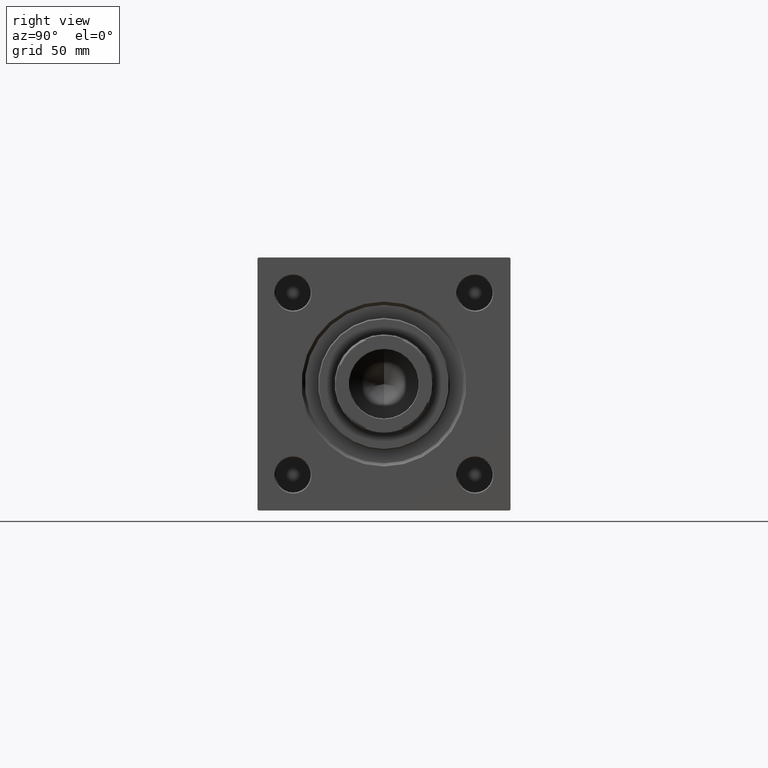
[diagram: clean part render]
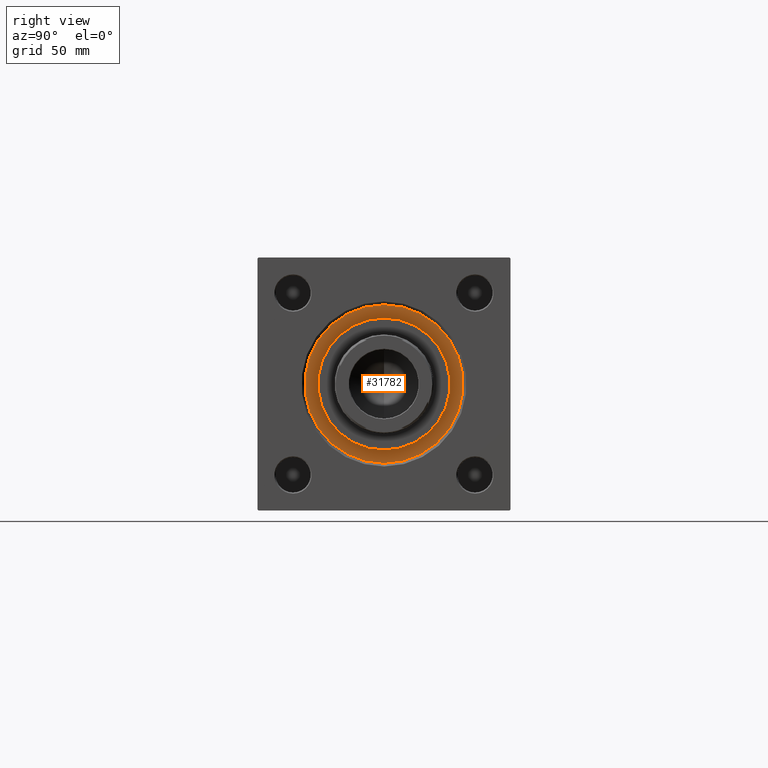
[diagram: same view with one face highlighted and labeled with its STEP entity id]
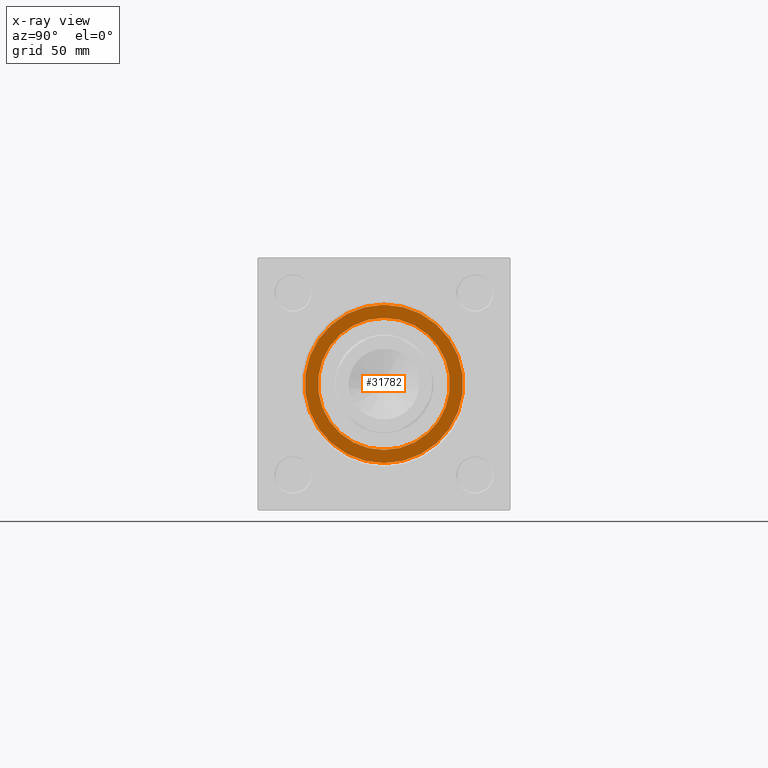
[diagram: x-ray of the same camera — body ghosted, the highlighted face saturated]
A machine part, right view. The second image highlights one B-rep face of the part: STEP entity #31782.
The next image is the same camera in x-ray: the body ghosted, the highlighted face saturated — about 0% of this face is hidden behind the body in this view.
In plain terms, the highlighted planar face has unit normal (1, 0, 0).
Its self-contained STEP definition (entity closure, byte-faithful):
#1202 = VERTEX_POINT ( 'NONE', #4866 ) ;
#2090 = DIRECTION ( 'NONE',  ( 1.000000000000000000, 0.000000000000000000, 0.000000000000000000 ) ) ;
#2588 = AXIS2_PLACEMENT_3D ( 'NONE', #18439, #41766, #2090 ) ;
#3252 = FACE_BOUND ( 'NONE', #41254, .T. ) ;
#4333 = CARTESIAN_POINT ( 'NONE',  ( 30.00000000000000000, 3.673940397442059178E-15, 28.69999999999999929 ) ) ;
#4866 = CARTESIAN_POINT ( 'NONE',  ( 36.00000000000000000, 4.408728476930470856E-15, 28.69999999999999929 ) ) ;
#7833 = CARTESIAN_POINT ( 'NONE',  ( 0.000000000000000000, 0.000000000000000000, 28.69999999999999929 ) ) ;
#10698 = VERTEX_POINT ( 'NONE', #46808 ) ;
#12262 = DIRECTION ( 'NONE',  ( 1.000000000000000000, 0.000000000000000000, 0.000000000000000000 ) ) ;
#14522 = DIRECTION ( 'NONE',  ( 1.000000000000000000, 0.000000000000000000, -0.000000000000000000 ) ) ;
#17313 = EDGE_CURVE ( 'NONE', #43953, #1202, #34455, .T. ) ;
#18439 = CARTESIAN_POINT ( 'NONE',  ( 0.000000000000000000, 0.000000000000000000, 28.69999999999999929 ) ) ;
#19099 = ORIENTED_EDGE ( 'NONE', *, *, #44391, .F. ) ;
#19109 = DIRECTION ( 'NONE',  ( 0.000000000000000000, 0.000000000000000000, 1.000000000000000000 ) ) ;
#20929 = AXIS2_PLACEMENT_3D ( 'NONE', #30007, #37176, #26416 ) ;
#21735 = CIRCLE ( 'NONE', #20929, 36.00000000000000000 ) ;
#21876 = ORIENTED_EDGE ( 'NONE', *, *, #35007, .F. ) ;
#25308 = CARTESIAN_POINT ( 'NONE',  ( -36.00000000000000000, 0.000000000000000000, 28.69999999999999929 ) ) ;
#26293 = ORIENTED_EDGE ( 'NONE', *, *, #48812, .T. ) ;
#26416 = DIRECTION ( 'NONE',  ( 1.000000000000000000, 0.000000000000000000, 0.000000000000000000 ) ) ;
#27477 = CARTESIAN_POINT ( 'NONE',  ( 0.000000000000000000, 0.000000000000000000, 28.69999999999999929 ) ) ;
#30007 = CARTESIAN_POINT ( 'NONE',  ( 0.000000000000000000, 0.000000000000000000, 28.69999999999999929 ) ) ;
#31782 = ADVANCED_FACE ( 'NONE', ( #3252, #34232 ), #34986, .T. ) ;
#34232 = FACE_OUTER_BOUND ( 'NONE', #38279, .T. ) ;
#34455 = CIRCLE ( 'NONE', #2588, 36.00000000000000000 ) ;
#34986 = PLANE ( 'NONE',  #46309 ) ;
#35007 = EDGE_CURVE ( 'NONE', #10698, #40637, #46421, .T. ) ;
#37176 = DIRECTION ( 'NONE',  ( 0.000000000000000000, 0.000000000000000000, 1.000000000000000000 ) ) ;
#38279 = EDGE_LOOP ( 'NONE', ( #41699, #26293 ) ) ;
#39404 = CARTESIAN_POINT ( 'NONE',  ( 0.000000000000000000, 0.000000000000000000, 28.69999999999999929 ) ) ;
#40637 = VERTEX_POINT ( 'NONE', #4333 ) ;
#41240 = AXIS2_PLACEMENT_3D ( 'NONE', #27477, #43108, #49701 ) ;
#41254 = EDGE_LOOP ( 'NONE', ( #21876, #19099 ) ) ;
#41699 = ORIENTED_EDGE ( 'NONE', *, *, #17313, .T. ) ;
#41766 = DIRECTION ( 'NONE',  ( 0.000000000000000000, 0.000000000000000000, 1.000000000000000000 ) ) ;
#43108 = DIRECTION ( 'NONE',  ( 0.000000000000000000, 0.000000000000000000, 1.000000000000000000 ) ) ;
#43953 = VERTEX_POINT ( 'NONE', #25308 ) ;
#43961 = AXIS2_PLACEMENT_3D ( 'NONE', #39404, #48356, #12262 ) ;
#44391 = EDGE_CURVE ( 'NONE', #40637, #10698, #50229, .T. ) ;
#46309 = AXIS2_PLACEMENT_3D ( 'NONE', #7833, #19109, #14522 ) ;
#46421 = CIRCLE ( 'NONE', #43961, 30.00000000000000000 ) ;
#46808 = CARTESIAN_POINT ( 'NONE',  ( -30.00000000000000000, 0.000000000000000000, 28.69999999999999929 ) ) ;
#48356 = DIRECTION ( 'NONE',  ( 0.000000000000000000, 0.000000000000000000, 1.000000000000000000 ) ) ;
#48812 = EDGE_CURVE ( 'NONE', #1202, #43953, #21735, .T. ) ;
#49701 = DIRECTION ( 'NONE',  ( 1.000000000000000000, 0.000000000000000000, 0.000000000000000000 ) ) ;
#50229 = CIRCLE ( 'NONE', #41240, 30.00000000000000000 ) ;